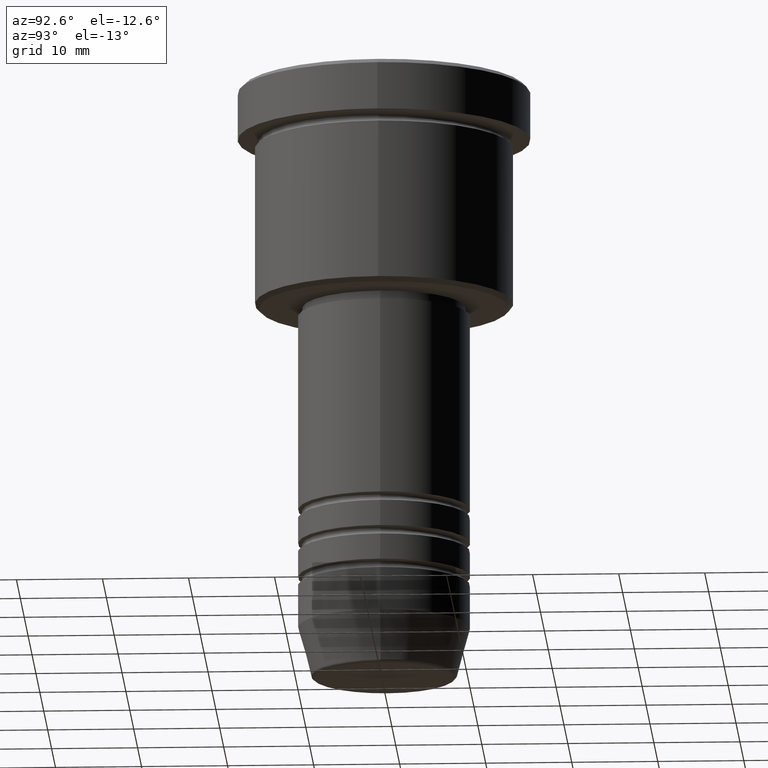
[diagram: clean part render]
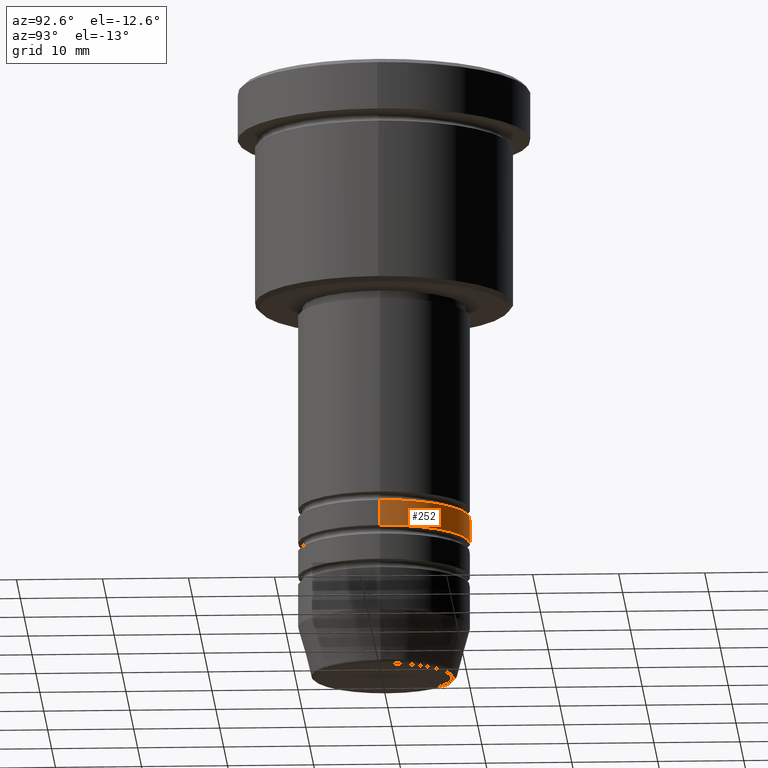
[diagram: same view with one face highlighted and labeled with its STEP entity id]
A machine part, auxiliary view. The second image highlights one B-rep face of the part: STEP entity #252.
In plain terms, the highlighted cylindrical surface (partial cylindrical patch) has radius 10 mm, axis along (-0, -0, 1).
Its self-contained STEP definition (entity closure, byte-faithful):
#27 = DIRECTION ( 'NONE',  ( -0.000000000000000000, -0.000000000000000000, 1.000000000000000000 ) ) ;
#42 = EDGE_CURVE ( 'NONE', #1011, #456, #829, .T. ) ;
#47 = ORIENTED_EDGE ( 'NONE', *, *, #631, .T. ) ;
#113 = CARTESIAN_POINT ( 'NONE',  ( 0.000000000000000000, 0.000000000000000000, -51.00000000000000000 ) ) ;
#128 = DIRECTION ( 'NONE',  ( 1.000000000000000000, 0.000000000000000000, 0.000000000000000000 ) ) ;
#176 = ORIENTED_EDGE ( 'NONE', *, *, #42, .T. ) ;
#194 = EDGE_LOOP ( 'NONE', ( #176, #47, #851, #484 ) ) ;
#244 = EDGE_CURVE ( 'NONE', #1173, #375, #609, .T. ) ;
#252 = ADVANCED_FACE ( 'NONE', ( #505 ), #671, .T. ) ;
#272 = LINE ( 'NONE', #305, #531 ) ;
#273 = DIRECTION ( 'NONE',  ( -0.000000000000000000, -0.000000000000000000, 1.000000000000000000 ) ) ;
#305 = CARTESIAN_POINT ( 'NONE',  ( 10.00000000000000178, 0.000000000000000000, 0.000000000000000000 ) ) ;
#328 = CARTESIAN_POINT ( 'NONE',  ( 0.000000000000000000, 0.000000000000000000, -53.99999999999999289 ) ) ;
#375 = VERTEX_POINT ( 'NONE', #1024 ) ;
#430 = CARTESIAN_POINT ( 'NONE',  ( 0.000000000000000000, 0.000000000000000000, 0.000000000000000000 ) ) ;
#456 = VERTEX_POINT ( 'NONE', #1029 ) ;
#484 = ORIENTED_EDGE ( 'NONE', *, *, #1093, .F. ) ;
#505 = FACE_OUTER_BOUND ( 'NONE', #194, .T. ) ;
#511 = DIRECTION ( 'NONE',  ( 1.000000000000000000, 0.000000000000000000, 0.000000000000000000 ) ) ;
#531 = VECTOR ( 'NONE', #1045, 1000.000000000000000 ) ;
#532 = AXIS2_PLACEMENT_3D ( 'NONE', #430, #693, #511 ) ;
#535 = VECTOR ( 'NONE', #273, 1000.000000000000000 ) ;
#571 = AXIS2_PLACEMENT_3D ( 'NONE', #328, #813, #972 ) ;
#609 = CIRCLE ( 'NONE', #1057, 10.00000000000000000 ) ;
#631 = EDGE_CURVE ( 'NONE', #456, #375, #1101, .T. ) ;
#667 = CARTESIAN_POINT ( 'NONE',  ( -10.00000000000000178, 1.224646799147353454E-15, 0.000000000000000000 ) ) ;
#671 = CYLINDRICAL_SURFACE ( 'NONE', #532, 10.00000000000000178 ) ;
#693 = DIRECTION ( 'NONE',  ( -0.000000000000000000, -0.000000000000000000, 1.000000000000000000 ) ) ;
#813 = DIRECTION ( 'NONE',  ( -0.000000000000000000, -0.000000000000000000, 1.000000000000000000 ) ) ;
#829 = CIRCLE ( 'NONE', #571, 10.00000000000000178 ) ;
#851 = ORIENTED_EDGE ( 'NONE', *, *, #244, .F. ) ;
#879 = CARTESIAN_POINT ( 'NONE',  ( 10.00000000000000178, 0.000000000000000000, -53.99999999999999289 ) ) ;
#891 = CARTESIAN_POINT ( 'NONE',  ( 10.00000000000000000, 0.000000000000000000, -51.00000000000000000 ) ) ;
#972 = DIRECTION ( 'NONE',  ( 1.000000000000000000, 0.000000000000000000, 0.000000000000000000 ) ) ;
#1011 = VERTEX_POINT ( 'NONE', #879 ) ;
#1024 = CARTESIAN_POINT ( 'NONE',  ( -10.00000000000000000, 1.224646799147353256E-15, -51.00000000000000000 ) ) ;
#1029 = CARTESIAN_POINT ( 'NONE',  ( -10.00000000000000178, 1.224646799147353454E-15, -53.99999999999999289 ) ) ;
#1045 = DIRECTION ( 'NONE',  ( -0.000000000000000000, -0.000000000000000000, 1.000000000000000000 ) ) ;
#1057 = AXIS2_PLACEMENT_3D ( 'NONE', #113, #27, #128 ) ;
#1093 = EDGE_CURVE ( 'NONE', #1011, #1173, #272, .T. ) ;
#1101 = LINE ( 'NONE', #667, #535 ) ;
#1173 = VERTEX_POINT ( 'NONE', #891 ) ;